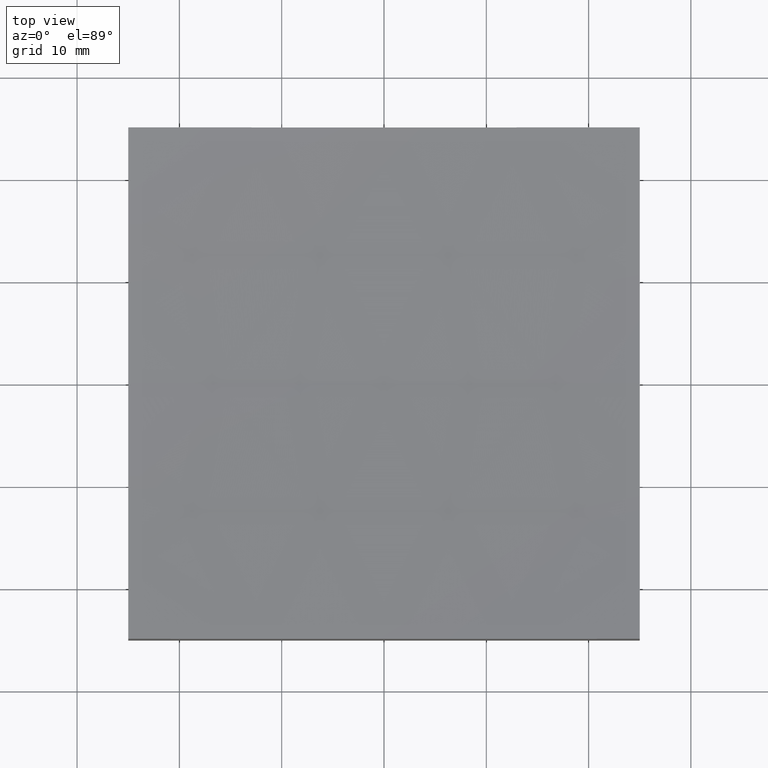
[diagram: clean part render]
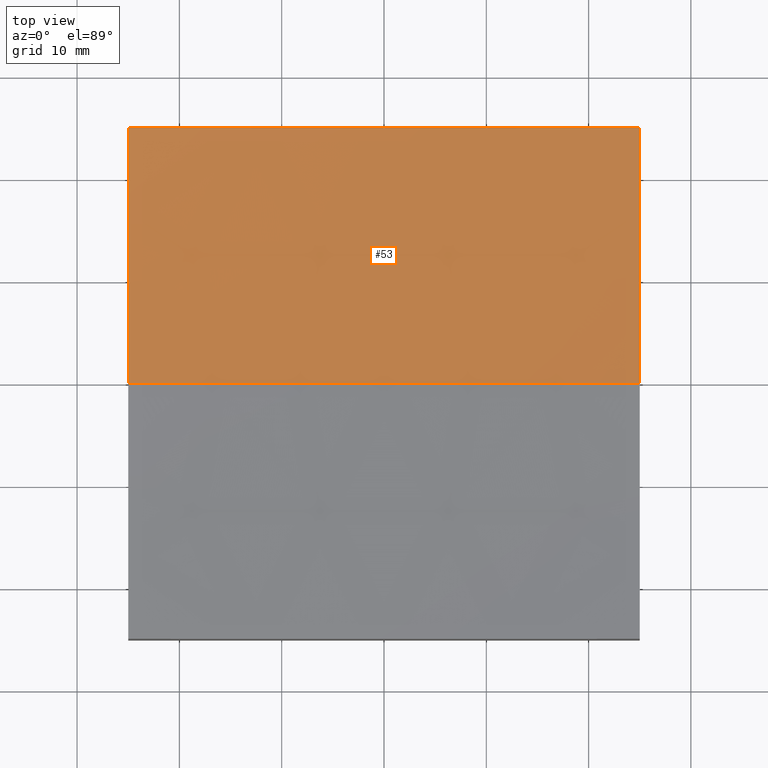
[diagram: same view with one face highlighted and labeled with its STEP entity id]
A machine part, top view. The second image highlights one B-rep face of the part: STEP entity #53.
In plain terms, the highlighted spherical surface has radius 400 mm.
Its self-contained STEP definition (entity closure, byte-faithful):
#6 = DIRECTION ( 'NONE',  ( 1.000000000000000000, 6.938893903907228378E-17, -0.0000000000000000000 ) ) ;
#17 = ORIENTED_EDGE ( 'NONE', *, *, #31, .F. ) ;
#21 = FACE_OUTER_BOUND ( 'NONE', #162, .T. ) ;
#23 = CARTESIAN_POINT ( 'NONE',  ( 24.99999999999999645, 24.99999999999999645, 10.56556373726935760 ) ) ;
#24 = DIRECTION ( 'NONE',  ( -6.952486265422993012E-17, 1.000000000000000000, 0.0000000000000000000 ) ) ;
#26 = CARTESIAN_POINT ( 'NONE',  ( 9.319482020284216011E-14, 0.0000000000000000000, 9.000000000000063949 ) ) ;
#31 = EDGE_CURVE ( 'NONE', #181, #60, #99, .T. ) ;
#32 = AXIS2_PLACEMENT_3D ( 'NONE', #108, #6, #24 ) ;
#39 = AXIS2_PLACEMENT_3D ( 'NONE', #124, #201, #183 ) ;
#46 = DIRECTION ( 'NONE',  ( 0.0000000000000000000, 0.0000000000000000000, -1.000000000000000000 ) ) ;
#47 = AXIS2_PLACEMENT_3D ( 'NONE', #49, #90, #207 ) ;
#49 = CARTESIAN_POINT ( 'NONE',  ( 5.008805408512674501E-14, 0.0000000000000000000, 409.0000000000000568 ) ) ;
#53 = ADVANCED_FACE ( 'NONE', ( #21 ), #131, .F. ) ;
#60 = VERTEX_POINT ( 'NONE', #202 ) ;
#66 = VERTEX_POINT ( 'NONE', #23 ) ;
#70 = DIRECTION ( 'NONE',  ( 0.0000000000000000000, -1.000000000000000000, 0.0000000000000000000 ) ) ;
#76 = EDGE_CURVE ( 'NONE', #60, #101, #147, .T. ) ;
#87 = CARTESIAN_POINT ( 'NONE',  ( 5.008805408512674501E-14, 0.0000000000000000000, 409.0000000000000568 ) ) ;
#90 = DIRECTION ( 'NONE',  ( -0.0000000000000000000, 1.000000000000000000, 0.0000000000000000000 ) ) ;
#99 = CIRCLE ( 'NONE', #126, 399.9999999999999432 ) ;
#101 = VERTEX_POINT ( 'NONE', #220 ) ;
#105 = EDGE_CURVE ( 'NONE', #66, #101, #161, .T. ) ;
#108 = CARTESIAN_POINT ( 'NONE',  ( -25.00000000000000355, -1.734723475976811039E-15, 409.0000000000000568 ) ) ;
#110 = DIRECTION ( 'NONE',  ( -1.000000000000000000, 1.224646799147353207E-16, 0.0000000000000000000 ) ) ;
#112 = CARTESIAN_POINT ( 'NONE',  ( 24.99999999999999645, 1.734723475976803545E-15, 409.0000000000000568 ) ) ;
#124 = CARTESIAN_POINT ( 'NONE',  ( 5.008805408512674501E-14, 24.99999999999999645, 409.0000000000000568 ) ) ;
#126 = AXIS2_PLACEMENT_3D ( 'NONE', #146, #225, #110 ) ;
#129 = AXIS2_PLACEMENT_3D ( 'NONE', #87, #70, #46 ) ;
#131 = SPHERICAL_SURFACE ( 'NONE', #47, 399.9999999999999432 ) ;
#137 = ORIENTED_EDGE ( 'NONE', *, *, #76, .F. ) ;
#146 = CARTESIAN_POINT ( 'NONE',  ( 5.008805408512674501E-14, 0.0000000000000000000, 409.0000000000000568 ) ) ;
#147 = CIRCLE ( 'NONE', #32, 399.2179855667827155 ) ;
#153 = CARTESIAN_POINT ( 'NONE',  ( 24.99999999999999645, -9.629649721936179265E-32, 9.782014433217273819 ) ) ;
#154 = DIRECTION ( 'NONE',  ( -6.952486265422991780E-17, 1.000000000000000000, 0.0000000000000000000 ) ) ;
#161 = CIRCLE ( 'NONE', #39, 399.2179855667827724 ) ;
#162 = EDGE_LOOP ( 'NONE', ( #17, #198, #176, #234, #137 ) ) ;
#171 = EDGE_CURVE ( 'NONE', #181, #230, #235, .T. ) ;
#176 = ORIENTED_EDGE ( 'NONE', *, *, #216, .T. ) ;
#181 = VERTEX_POINT ( 'NONE', #26 ) ;
#183 = DIRECTION ( 'NONE',  ( 0.0000000000000000000, 0.0000000000000000000, 1.000000000000000000 ) ) ;
#184 = CIRCLE ( 'NONE', #218, 399.2179855667827724 ) ;
#198 = ORIENTED_EDGE ( 'NONE', *, *, #171, .T. ) ;
#201 = DIRECTION ( 'NONE',  ( 0.0000000000000000000, 1.000000000000000000, 0.0000000000000000000 ) ) ;
#202 = CARTESIAN_POINT ( 'NONE',  ( -25.00000000000000355, 3.061616997868391720E-15, 9.782014433217300464 ) ) ;
#207 = DIRECTION ( 'NONE',  ( 1.000000000000000000, 0.0000000000000000000, 0.0000000000000000000 ) ) ;
#216 = EDGE_CURVE ( 'NONE', #230, #66, #184, .T. ) ;
#218 = AXIS2_PLACEMENT_3D ( 'NONE', #112, #247, #154 ) ;
#220 = CARTESIAN_POINT ( 'NONE',  ( -25.00000000000000711, 24.99999999999999645, 10.56556373726941267 ) ) ;
#225 = DIRECTION ( 'NONE',  ( 1.224646799147353207E-16, 1.000000000000000000, 5.698841873604149506E-33 ) ) ;
#230 = VERTEX_POINT ( 'NONE', #153 ) ;
#234 = ORIENTED_EDGE ( 'NONE', *, *, #105, .T. ) ;
#235 = CIRCLE ( 'NONE', #129, 399.9999999999999432 ) ;
#247 = DIRECTION ( 'NONE',  ( 1.000000000000000000, 6.938893903907228378E-17, -0.0000000000000000000 ) ) ;